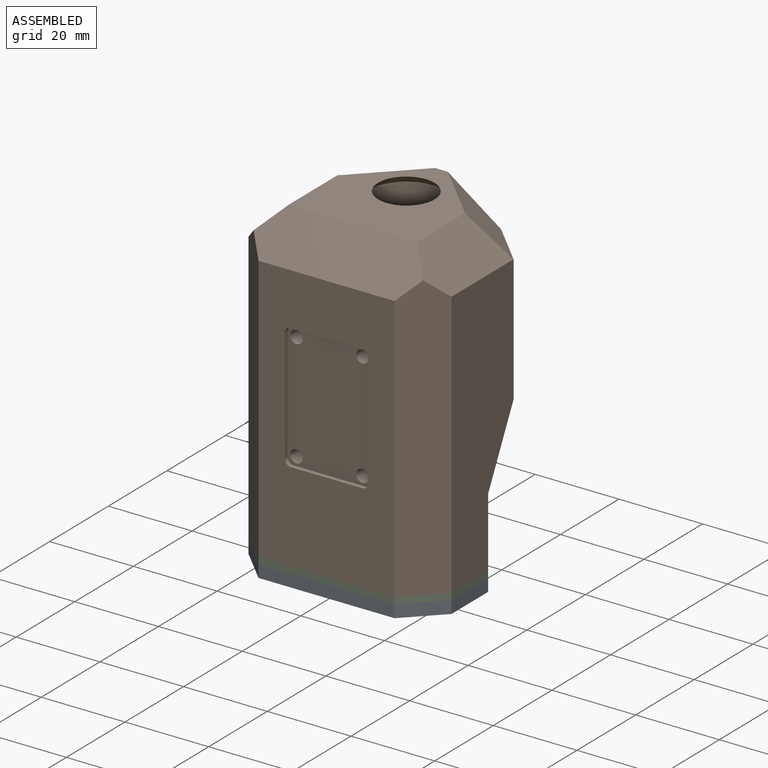
[diagram: assembled view]
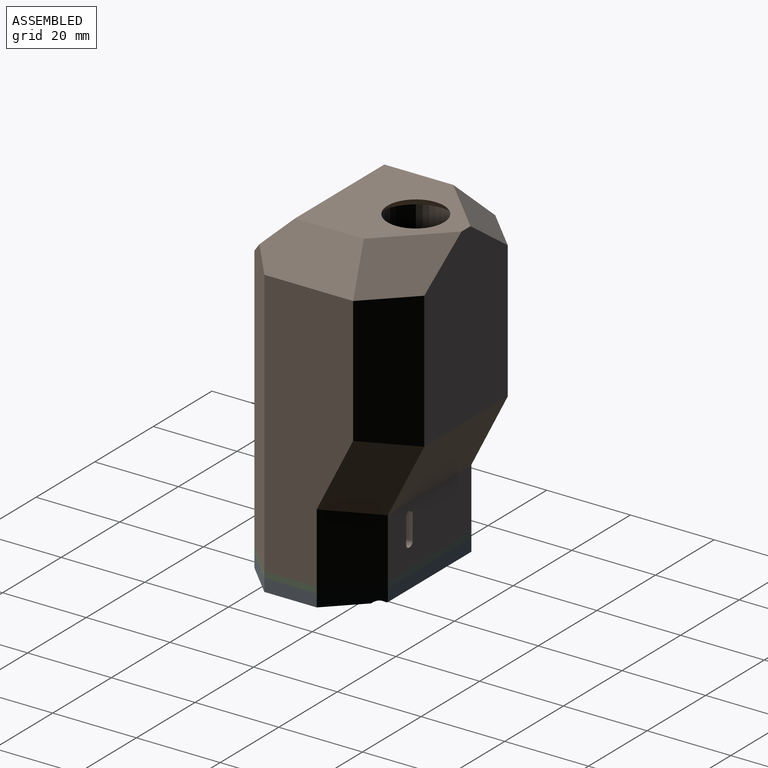
[diagram: assembled view, second angle]
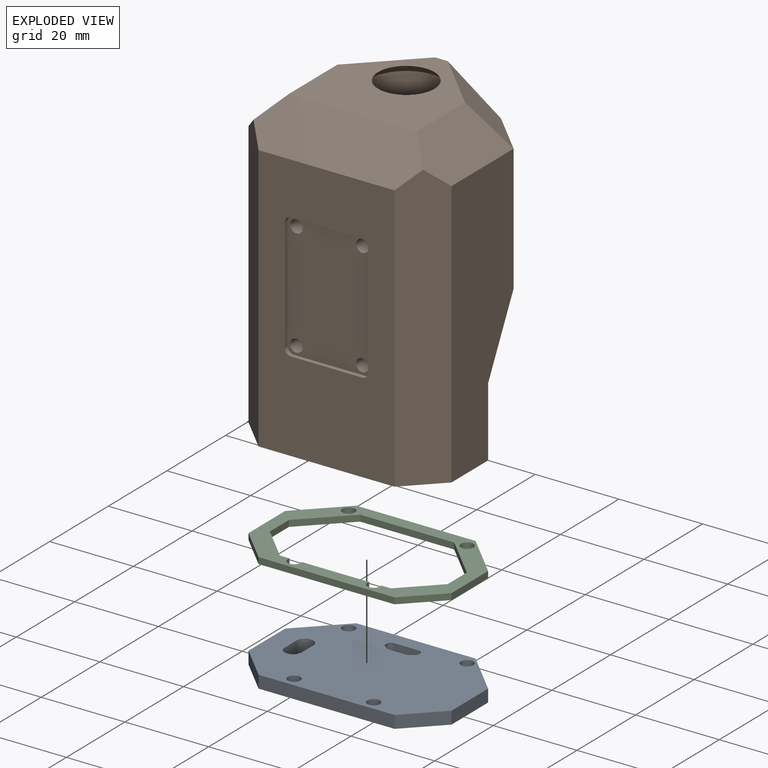
[diagram: exploded view]
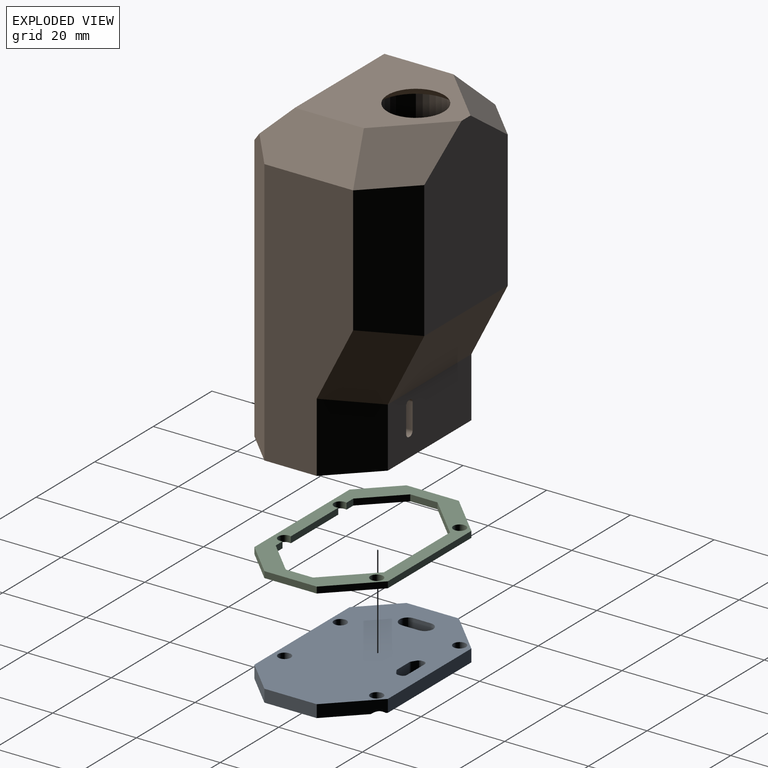
[diagram: exploded view, second angle]
ASSEMBLY  parts=3 mates=2
PART A: 34 faces, bbox 48.5x30.5x3 mm
  f0: plane 48.5x30.5mm, normal (0,0,-1), area 1188.5mm2, adj f2,f3,f4,f5,f6,f7,f8,f9
  f1: plane 48.5x30.5mm, normal (0,0,1), area 1236.8mm2, adj f2,f3,f4,f5,f6,f7,f8,f9
  f2: plane 6x3mm, normal (0,-1,0), area 18mm2, adj f0,f1,f16,f21
  f3: plane 3x0.38mm, normal (1,0,0), area 1.1mm2, adj f0,f1,f16,f17
  f4: plane 3x0.98mm, normal (0.54,0.84,0), area 3.5mm2, adj f0,f1,f17,f18
  f5: plane 4.04x3mm, normal (0,1,0), area 12.1mm2, adj f0,f1,f18,f19
  f6: plane 3x0.98mm, normal (-0.54,0.84,0), area 3.5mm2, adj f0,f1,f19,f20
  f7: plane 32.5x3mm, normal (0,-1,0), area 97.5mm2, adj f0,f1,f24,f25
  f8: plane 12.5x3mm, normal (-1,0,0), area 37.5mm2, adj f0,f1,f23,f24
  f9: plane 28.5x3mm, normal (0,1,0), area 85.5mm2, adj f0,f1,f22,f23
  f10: plane 4x3mm, normal (1,0,0), area 12mm2, adj f0,f1,f14,f15
  f11: plane 4x3mm, normal (-1,0,0), area 12mm2, adj f0,f1,f14,f15
  f12: plane 12.5x3mm, normal (1,0,0), area 37.5mm2, adj f0,f1,f22,f25
  f13: plane 3x0.38mm, normal (-1,0,0), area 1.1mm2, adj f0,f1,f20,f21
  f14: cylinder r=2mm len=4mm, axis (0,0,-1), area 18.8mm2, adj f0,f1,f10,f11
  f15: cylinder r=2mm len=4mm, axis (0,0,-1), area 18.8mm2, adj f0,f1,f10,f11
  f16: cylinder r=1mm len=3mm, axis (0,0,-1), area 4.7mm2, adj f0,f1,f2,f3
  f17: cylinder r=1mm len=3mm, axis (0,0,-1), area 3mm2, adj f0,f1,f3,f4
  f18: cylinder r=1mm len=3mm, axis (0,0,1), area 1.7mm2, adj f0,f1,f4,f5
  f19: cylinder r=1mm len=3mm, axis (0,0,1), area 1.7mm2, adj f0,f1,f5,f6
  f20: cylinder r=1mm len=3mm, axis (0,0,-1), area 3mm2, adj f0,f1,f6,f13
  f21: cylinder r=1mm len=3mm, axis (0,0,-1), area 4.7mm2, adj f0,f1,f2,f13
  f22: plane 10x10mm, normal (0.71,0.71,0), area 41.4mm2, adj f0,f1,f9,f12,f32
  f23: plane 10x10mm, normal (-0.71,0.71,0), area 41.4mm2, adj f0,f1,f8,f9,f33
  f24: plane 8x8mm, normal (-0.71,-0.71,0), area 33.9mm2, adj f0,f1,f7,f8
  f25: plane 8x8mm, normal (0.71,-0.71,0), area 33.9mm2, adj f0,f1,f7,f12
  f26: cylinder r=1.5mm len=3mm, axis (0,0,-1), area 18.8mm2, adj f1,f30
  f27: cylinder r=1.5mm len=3mm, axis (0,0,-1), area 18.8mm2, adj f1,f31
  f28: cylinder r=1.5mm len=3mm, axis (0,0,-1), area 18.8mm2, adj f1,f33
  f29: cylinder r=1.5mm len=3mm, axis (0,0,-1), area 18.8mm2, adj f1,f32
  f30: cone r=2.5mm half-angle=45deg, axis (0,0,-1), area 17.8mm2, adj f0,f26
  f31: cone r=1.5mm half-angle=45deg, axis (0,0,-1), area 17.8mm2, adj f0,f27
  f32: cone r=2.5mm half-angle=45deg, axis (0,0,-1), area 16.3mm2, adj f0,f22,f29
  f33: cone r=1.5mm half-angle=45deg, axis (0,0,-1), area 16.3mm2, adj f0,f23,f28
PART B: 97 faces, bbox 48.5x39.2x73 mm
  f0: plane 48.5x30.5mm, normal (0,0,-1), area 480.7mm2, adj f1,f2,f4,f5,f9,f10,f11,f13
  f1: plane 22.5x15mm, normal (0,-1,0), area 320.8mm2, adj f0,f32,f39,f42,f72,f73,f74,f75
  f2: plane 28.5x14.28mm, normal (0,1,0), area 390.3mm2, adj f0,f31,f46,f50,f72,f73,f74,f75
  f3: plane 30x20mm, normal (0,-1,0), area 569.8mm2, adj f56,f57,f58,f59,f60,f61,f62,f63
  f4: plane 64x32.5mm, normal (0,-1,0), area 1481.9mm2, adj f0,f35,f37,f53,f56,f57,f58,f59
  f5: plane 64x21.2mm, normal (1,0,0), area 1137.3mm2, adj f0,f37,f45,f46,f47,f52
  f6: plane 41.62x28.5mm, normal (0,1,0), area 1071.5mm2, adj f12,f31,f45,f48,f51,f55
  f7: plane 38.9x22.5mm, normal (0,-1,0), area 751.6mm2, adj f27,f28,f29,f32,f41,f44
  f8: plane 26.5x15.3mm, normal (0,1,0), area 405.4mm2, adj f23,f26,f33,f34,f36,f38
  f9: plane 65x15.2mm, normal (-1,0,0), area 762.2mm2, adj f0,f27,f38,f39,f40,f41
  f10: plane 65x15.2mm, normal (1,0,0), area 718.1mm2, adj f0,f27,f36,f42,f43,f44,f96
  f11: plane 64x21.2mm, normal (-1,0,0), area 1093.1mm2, adj f0,f35,f48,f49,f50,f54,f96
  f12: plane 30.5x30.2mm, normal (0,0,1), area 589.5mm2, adj f6,f30,f51,f52,f53,f54,f55
  f13: plane 20x3.5mm, normal (0,1,0), area 70mm2, adj f0,f14,f15,f16
  f14: plane 29.7x9.75mm, normal (-1,0,0), area 242mm2, adj f0,f13,f16,f34,f36
  f15: cylinder r=9.75mm len=29.7mm, axis (0,0,-1), area 801.2mm2, adj f0,f13,f16,f18,f19,f33,f34
  f16: plane 3.5x0.05mm, normal (0,0,1), area 0.2mm2, adj f13,f14,f15,f34
  f17: plane 29.7x9.75mm, normal (1,0,0), area 242mm2, adj f0,f18,f19,f33,f38
  f18: plane 20x3.5mm, normal (0,1,0), area 70mm2, adj f0,f15,f17,f19
  f19: plane 3.5x0.05mm, normal (0,0,1), area 0.2mm2, adj f15,f17,f18,f33
  f20: plane 20x3.5mm, normal (0,1,0), area 70mm2, adj f21,f22,f23,f27
  f21: plane 20x9.75mm, normal (-1,0,0), area 195mm2, adj f20,f23,f27,f36
  f22: cylinder r=9.75mm len=20mm, axis (0,0,-1), area 612.6mm2, adj f20,f23,f25,f26,f27
  f23: plane 13.25x9.75mm, normal (0,0,-1), area 54.5mm2, adj f8,f20,f21,f22
  f24: plane 20x9.75mm, normal (1,0,0), area 195mm2, adj f25,f26,f27,f38
  f25: plane 20x3.5mm, normal (0,1,0), area 70mm2, adj f22,f24,f26,f27
  f26: plane 13.25x9.75mm, normal (0,0,-1), area 54.5mm2, adj f8,f22,f24,f25
  f27: plane 42.5x33.2mm, normal (0,0,-1), area 880.7mm2, adj f7,f9,f10,f20,f21,f22,f24,f25
  f28: cylinder r=9.05mm len=18.1mm, axis (0,0,1), area 329.8mm2, adj f7,f27,f29
  f29: plane 18.1x18.05mm, normal (0,0,-1), area 16.7mm2, adj f7,f28,f30
  f30: cone r=8.75mm half-angle=45deg, axis (0,0,-1), area 137.7mm2, adj f12,f29
  f31: plane 28.5x17.1mm, normal (0,0.89,-0.45), area 546.9mm2, adj f2,f6,f47,f49
  f32: plane 22.5x17.1mm, normal (0,-0.89,0.45), area 431.7mm2, adj f1,f7,f40,f43
  f33: plane 13.25x9.7mm, normal (0,0.71,0.71), area 76.9mm2, adj f8,f15,f17,f19
  f34: plane 13.25x9.7mm, normal (0,0.71,0.71), area 76.9mm2, adj f8,f14,f15,f16
  f35: plane 68x8mm, normal (-0.71,-0.71,0), area 746.7mm2, adj f0,f4,f11,f53,f54
  f36: plane 65x8mm, normal (0.71,0.71,0), area 731.7mm2, adj f0,f8,f10,f14,f21,f27,f93,f94
  f37: plane 68x8mm, normal (0.71,-0.71,0), area 746.7mm2, adj f0,f4,f5,f52,f53
  f38: plane 65x8mm, normal (-0.71,0.71,0), area 735.4mm2, adj f0,f8,f9,f17,f24,f27
  f39: plane 17.4x10mm, normal (-0.71,-0.71,0), area 229.1mm2, adj f0,f1,f9,f40
  f40: plane 19.5x18.7mm, normal (-0.71,-0.63,0.32), area 271.4mm2, adj f9,f32,f39,f41
  f41: plane 32.9x10mm, normal (-0.71,-0.71,0), area 448.3mm2, adj f7,f9,f27,f40
  f42: plane 17.4x10mm, normal (0.71,-0.71,0), area 224.1mm2, adj f0,f1,f10,f43,f88,f89,f90
  f43: plane 19.5x18.7mm, normal (0.71,-0.63,0.32), area 271.4mm2, adj f10,f32,f42,f44
  f44: plane 32.9x10mm, normal (0.71,-0.71,0), area 448.3mm2, adj f7,f10,f27,f43
  f45: plane 32.62x10mm, normal (0.71,0.71,0), area 444.3mm2, adj f5,f6,f47,f51
  f46: plane 16.68x10mm, normal (0.71,0.71,0), area 218.9mm2, adj f0,f2,f5,f47
  f47: plane 19.5x18.7mm, normal (0.71,0.63,-0.32), area 271.4mm2, adj f5,f31,f45,f46
  f48: plane 32.62x10mm, normal (-0.71,0.71,0), area 444.3mm2, adj f6,f11,f49,f55
  f49: plane 19.5x18.7mm, normal (-0.71,0.63,-0.32), area 271.4mm2, adj f11,f31,f48,f50
  f50: plane 16.68x10mm, normal (-0.71,0.71,0), area 218.9mm2, adj f0,f2,f11,f49
  f51: plane 22.73x13.73mm, normal (0.5,0.5,0.71), area 213.6mm2, adj f6,f12,f45,f52
  f52: plane 25.2x9mm, normal (0.71,0,0.71), area 268mm2, adj f5,f12,f37,f51,f53
  f53: plane 40.5x9mm, normal (0,-0.71,0.71), area 457.5mm2, adj f4,f12,f35,f37,f52,f54
  f54: plane 25.2x9mm, normal (-0.71,0,0.71), area 268mm2, adj f11,f12,f35,f53,f55
  f55: plane 22.73x13.73mm, normal (-0.5,0.5,0.71), area 213.6mm2, adj f6,f12,f48,f54
  f56: plane 17x1mm, normal (0,0,1), area 17mm2, adj f3,f4,f60,f63
  f57: plane 27x1mm, normal (-1,0,0), area 27mm2, adj f3,f4,f60,f61
  f58: plane 17x1mm, normal (0,0,-1), area 17mm2, adj f3,f4,f61,f62
  f59: plane 27x1mm, normal (1,0,0), area 27mm2, adj f3,f4,f62,f63
  f60: cylinder r=1.5mm len=1.5mm, axis (0,-1,0), area 2.4mm2, adj f3,f4,f56,f57
  f61: cylinder r=1.5mm len=1.5mm, axis (0,1,0), area 2.4mm2, adj f3,f4,f57,f58
  f62: cylinder r=1.5mm len=1.5mm, axis (0,-1,0), area 2.4mm2, adj f3,f4,f58,f59
  f63: cylinder r=1.5mm len=1.5mm, axis (0,1,0), area 2.4mm2, adj f3,f4,f56,f59
  f64: cylinder r=1.5mm len=4mm, axis (0,-1,0), area 37.7mm2, adj f3,f65
  f65: plane 3x3mm, normal (0,-1,0), area 7.1mm2, adj f64
  f66: cylinder r=1.5mm len=4mm, axis (0,-1,0), area 37.7mm2, adj f3,f67
  f67: plane 3x3mm, normal (0,-1,0), area 7.1mm2, adj f66
  f68: cylinder r=1.5mm len=4mm, axis (0,-1,0), area 37.7mm2, adj f3,f69
  f69: plane 3x3mm, normal (0,-1,0), area 7.1mm2, adj f68
  f70: cylinder r=1.5mm len=4mm, axis (0,-1,0), area 37.7mm2, adj f3,f71
  f71: plane 3x3mm, normal (0,-1,0), area 7.1mm2, adj f70
  f72: plane 3x0.2mm, normal (0,0,-1), area 0.6mm2, adj f1,f2,f76,f79
  f73: plane 6x3mm, normal (-1,0,0), area 18mm2, adj f1,f2,f76,f77
  f74: plane 3x0.2mm, normal (0,0,1), area 0.6mm2, adj f1,f2,f77,f78
  f75: plane 6x3mm, normal (1,0,0), area 18mm2, adj f1,f2,f78,f79
  f76: cylinder r=1mm len=3mm, axis (0,1,0), area 4.7mm2, adj f1,f2,f72,f73
  f77: cylinder r=1mm len=3mm, axis (0,-1,0), area 4.7mm2, adj f1,f2,f73,f74
  f78: cylinder r=1mm len=3mm, axis (0,1,0), area 4.7mm2, adj f1,f2,f74,f75
  f79: cylinder r=1mm len=3mm, axis (0,-1,0), area 4.7mm2, adj f1,f2,f72,f75
  f80: cylinder r=1.5mm len=10mm, axis (0,0,-1), area 94.2mm2, adj f0,f81
  f81: plane 3x3mm, normal (0,0,-1), area 7.1mm2, adj f80
  f82: cylinder r=1.5mm len=10mm, axis (0,0,-1), area 94.2mm2, adj f0,f83
  f83: plane 3x3mm, normal (0,0,-1), area 7.1mm2, adj f82
  f84: cylinder r=1.5mm len=10mm, axis (0,0,-1), area 94.2mm2, adj f0,f85
  f85: plane 3x3mm, normal (0,0,-1), area 7.1mm2, adj f84
  f86: cylinder r=1.5mm len=10mm, axis (0,0,-1), area 94.2mm2, adj f0,f87
  f87: plane 3x3mm, normal (0,0,-1), area 7.1mm2, adj f86
  f88: plane 7.25x7mm, normal (0,0,-1), area 24.3mm2, adj f42,f89,f90,f91,f92
  f89: plane 4.25x0.5mm, normal (1,0,0), area 2.1mm2, adj f0,f42,f88,f91
  f90: plane 0.5x0.25mm, normal (-1,0,0), area 0.1mm2, adj f0,f42,f88,f92
  f91: cylinder r=3mm len=3mm, axis (0,0,-1), area 2.4mm2, adj f0,f88,f89,f92
  f92: plane 4x0.5mm, normal (0,-1,0), area 2mm2, adj f0,f88,f90,f91
  f93: plane 5.25x0.5mm, normal (0,1,0), area 2.6mm2, adj f0,f36,f94,f95
  f94: plane 5.25x0.5mm, normal (1,0,0), area 2.6mm2, adj f0,f36,f93,f95
  f95: plane 5.25x5.25mm, normal (0,0,-1), area 13.8mm2, adj f36,f93,f94
  f96: cylinder r=3.75mm len=7.5mm, axis (-1,0,0), area 70.7mm2, adj f10,f11
PART C: 24 faces, bbox 48.5x30.5x1.5 mm
  f0: plane 10x10mm, normal (-0.71,0.71,0), area 21.2mm2, adj f1,f19,f22,f23
  f1: plane 28.5x1.5mm, normal (0,1,0), area 42.7mm2, adj f0,f2,f22,f23
  f2: plane 10x10mm, normal (0.71,0.71,0), area 21.2mm2, adj f1,f3,f22,f23
  f3: plane 12.5x1.5mm, normal (1,0,0), area 18.8mm2, adj f2,f4,f22,f23
  f4: plane 8x8mm, normal (0.71,-0.71,0), area 17mm2, adj f3,f5,f22,f23
  f5: plane 32.5x1.5mm, normal (0,-1,0), area 48.8mm2, adj f4,f6,f22,f23
  f6: plane 8x8mm, normal (-0.71,-0.71,0), area 17mm2, adj f5,f19,f22,f23
  f7: plane 6.5x1.5mm, normal (1,0,0), area 9.8mm2, adj f8,f20,f22,f23
  f8: plane 8x8mm, normal (0.71,0.71,0), area 17mm2, adj f7,f9,f22,f23
  f9: plane 2.33x1.5mm, normal (0,1,0), area 3.5mm2, adj f8,f10,f22,f23
  f10: cylinder r=1.5mm len=3mm, axis (0,0,1), area 8.6mm2, adj f9,f11,f22,f23
  f11: plane 16.19x1.5mm, normal (0,1,0), area 24.3mm2, adj f10,f12,f22,f23
  f12: cylinder r=1.5mm len=3mm, axis (0,0,1), area 8.6mm2, adj f11,f13,f22,f23
  f13: plane 2.33x1.5mm, normal (0,1,0), area 3.5mm2, adj f12,f14,f22,f23
  f14: plane 8x8mm, normal (-0.71,0.71,0), area 17mm2, adj f13,f15,f22,f23
  f15: plane 6.5x1.5mm, normal (-1,0,0), area 9.8mm2, adj f14,f16,f22,f23
  f16: plane 10x10mm, normal (-0.71,-0.71,0), area 21.2mm2, adj f15,f17,f22,f23
  f17: plane 22.5x1.5mm, normal (0,-1,0), area 33.8mm2, adj f16,f20,f22,f23
  f18: cylinder r=1.5mm len=3mm, axis (0,0,1), area 14.1mm2, adj f22,f23
  f19: plane 12.5x1.5mm, normal (-1,0,0), area 18.8mm2, adj f0,f6,f22,f23
  f20: plane 10x10mm, normal (0.71,-0.71,0), area 21.2mm2, adj f7,f17,f22,f23
  f21: cylinder r=1.5mm len=3mm, axis (0,0,1), area 14.1mm2, adj f22,f23
  f22: plane 48.5x30.5mm, normal (0,0,-1), area 413.9mm2, adj f0,f1,f2,f3,f4,f5,f6,f7
  f23: plane 48.5x30.5mm, normal (0,0,1), area 413.9mm2, adj f0,f1,f2,f3,f4,f5,f6,f7
PLACE A t=(-9.34,24.62,-0.1)mm
PLACE B t=(-9.34,24.62,1.4)mm
PLACE C t=(-9.34,24.62,1.4)mm
MATE fastened A.f29 <-> C.f18  axis (0,0,1) through (4.81,32.79,-0.1)mm
MATE fastened C.f21 <-> B.f84  axis (0,0,1) through (-23.49,32.79,1.4)mm
